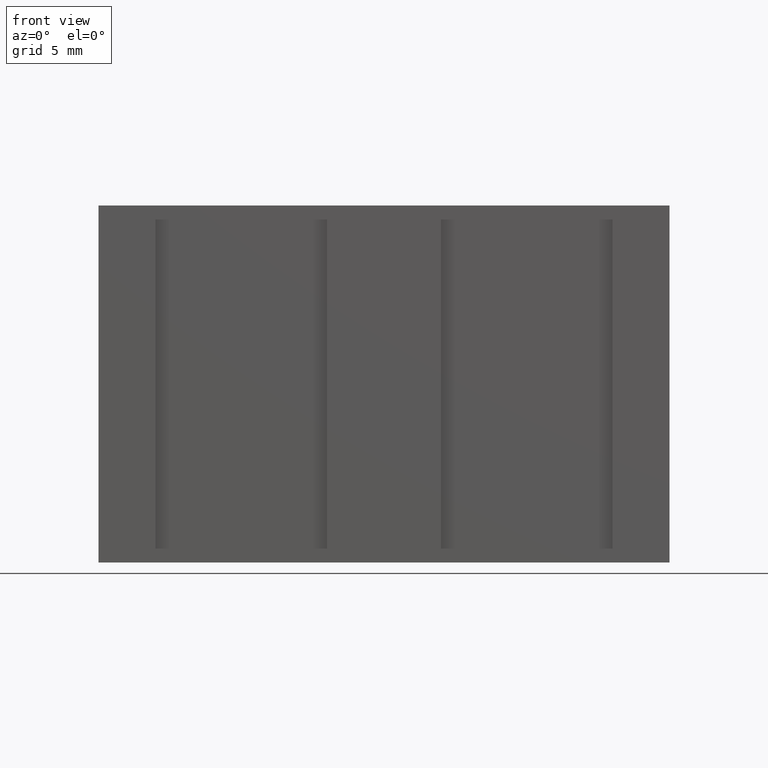
[diagram: clean part render]
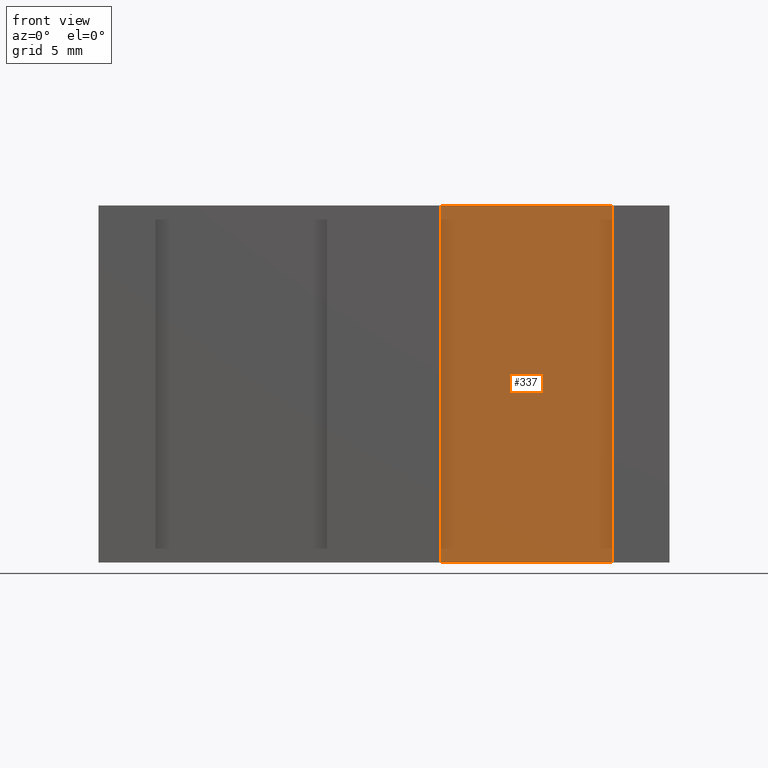
[diagram: same view with one face highlighted and labeled with its STEP entity id]
A machine part, front view. The second image highlights one B-rep face of the part: STEP entity #337.
In plain terms, the highlighted planar face has unit normal (0, -1, 0).
Its self-contained STEP definition (entity closure, byte-faithful):
#20=FACE_OUTER_BOUND('',#38,.T.);
#38=EDGE_LOOP('',(#244,#245,#246,#247));
#63=LINE('',#502,#105);
#74=LINE('',#530,#116);
#76=LINE('',#534,#118);
#77=LINE('',#535,#119);
#105=VECTOR('',#407,10.);
#116=VECTOR('',#426,10.);
#118=VECTOR('',#430,10.);
#119=VECTOR('',#431,10.);
#147=VERTEX_POINT('',#499);
#148=VERTEX_POINT('',#501);
#161=VERTEX_POINT('',#528);
#162=VERTEX_POINT('',#533);
#179=EDGE_CURVE('',#148,#147,#63,.T.);
#193=EDGE_CURVE('',#161,#147,#74,.T.);
#195=EDGE_CURVE('',#161,#162,#76,.T.);
#196=EDGE_CURVE('',#162,#148,#77,.T.);
#244=ORIENTED_EDGE('',*,*,#195,.T.);
#245=ORIENTED_EDGE('',*,*,#196,.T.);
#246=ORIENTED_EDGE('',*,*,#179,.T.);
#247=ORIENTED_EDGE('',*,*,#193,.F.);
#322=PLANE('',#381);
#337=ADVANCED_FACE('',(#20),#322,.T.);
#381=AXIS2_PLACEMENT_3D('',#532,#428,#429);
#407=DIRECTION('',(1.,0.,0.));
#426=DIRECTION('',(0.,0.,-1.));
#428=DIRECTION('center_axis',(0.,-1.,0.));
#429=DIRECTION('ref_axis',(0.,0.,-1.));
#430=DIRECTION('',(-1.,0.,0.));
#431=DIRECTION('',(0.,0.,-1.));
#499=CARTESIAN_POINT('',(16.,0.5,-12.5));
#501=CARTESIAN_POINT('',(4.,0.5,-12.5));
#502=CARTESIAN_POINT('',(16.,0.5,-12.5));
#528=CARTESIAN_POINT('',(16.,0.5,12.5));
#530=CARTESIAN_POINT('',(16.,0.5,0.));
#532=CARTESIAN_POINT('Origin',(16.,0.5,0.));
#533=CARTESIAN_POINT('',(4.,0.5,12.5));
#534=CARTESIAN_POINT('',(16.,0.5,12.5));
#535=CARTESIAN_POINT('',(4.,0.5,0.));